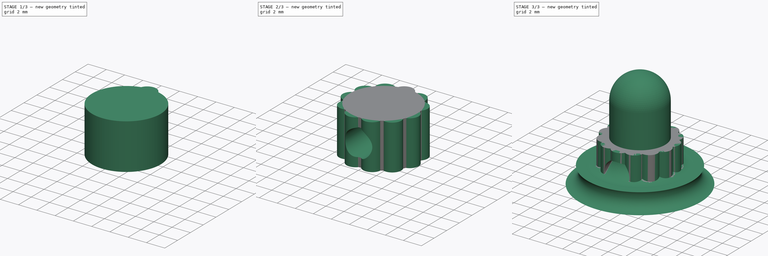
[diagram: build sequence overview — one tinted view per stage of 3, left to right]
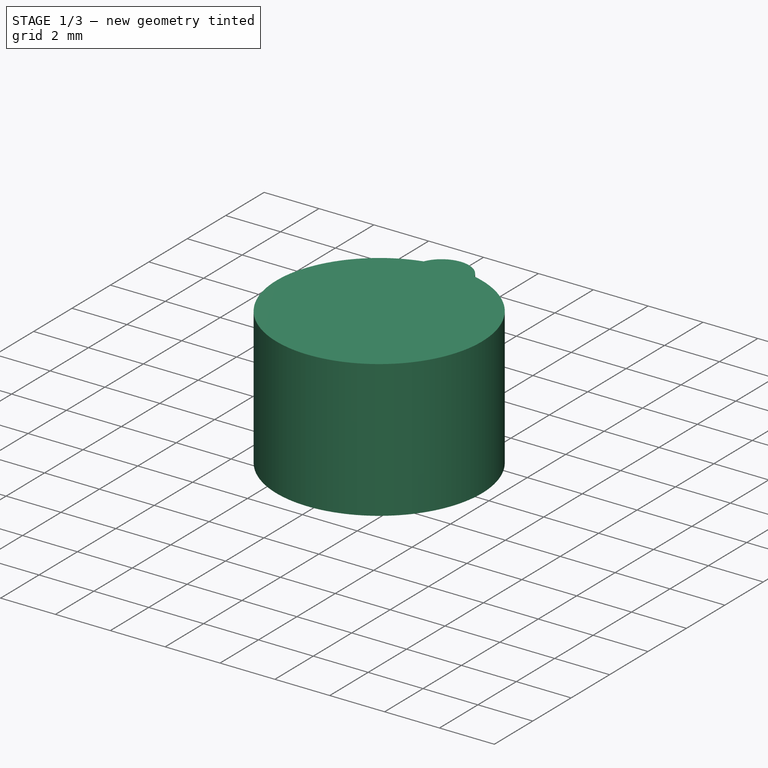
[diagram: stage 1 of 3 — iso view after this stage's code; geometry added in this stage tinted green]
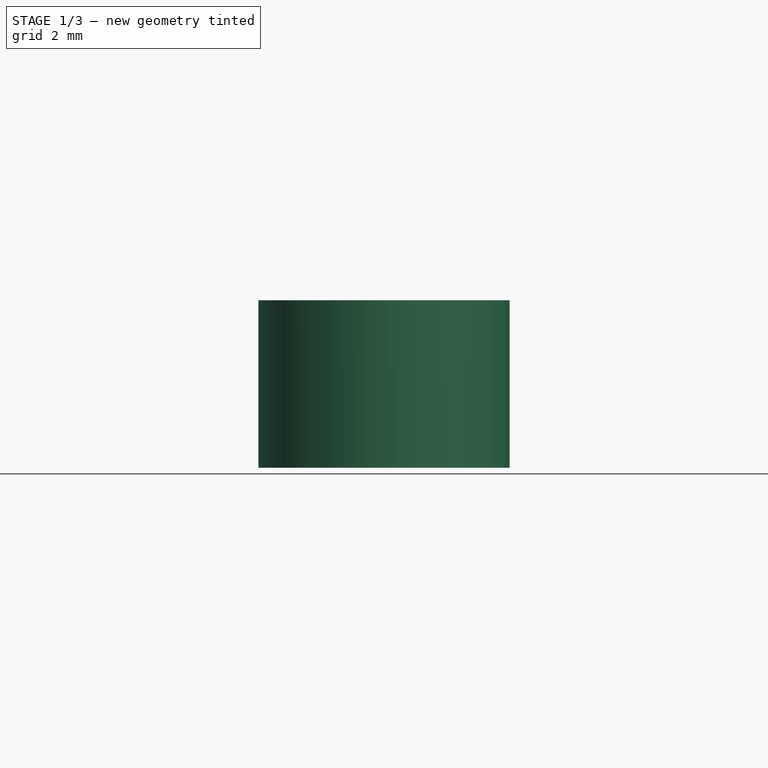
[diagram: stage 1 of 3 — front view after this stage's code; geometry added in this stage tinted green]
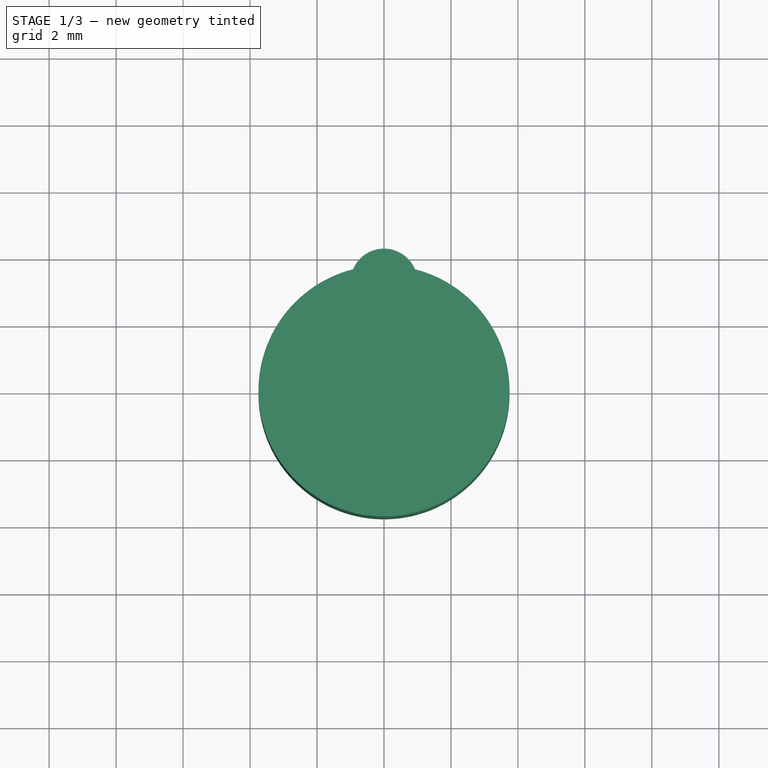
[diagram: stage 1 of 3 — top view after this stage's code; geometry added in this stage tinted green]
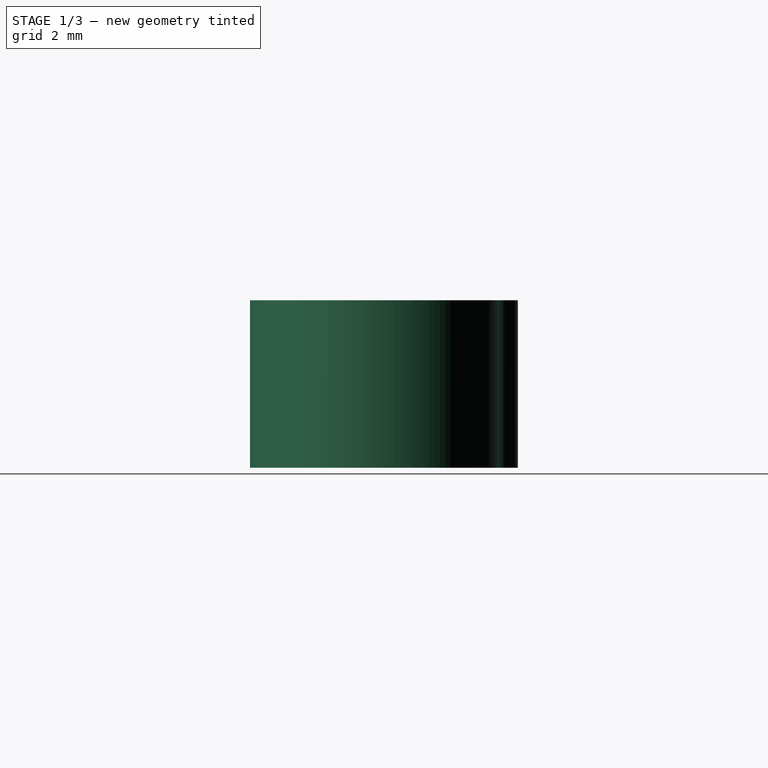
[diagram: stage 1 of 3 — right view after this stage's code; geometry added in this stage tinted green]
FCSTD DOCUMENT  (FreeCAD 0.20R29177 +426 (Git))
Label: fartbag_screw
License: All rights reserved
LicenseURL: http://en.wikipedia.org/wiki/All_rights_reserved
objects: Sketcher::SketchObject×5, PartDesign::Pad×2, PartDesign::PolarPattern×1, PartDesign::Pocket×1, PartDesign::Revolution×1, Part::Part2DObjectPython×1, Part::Helix×1, PartDesign::AdditivePipe×1, PartDesign::Body×1
note: 19 computed .brp shape members not serialized (recipe doc carries the construction recipe); baked Part::Feature solids carry a one-line shape summary decoded from their .brp

FEATURE [Sketcher::SketchObject] Sketch
  FullyConstrained = true
  MapMode = 5
  Support = -> [XY_Plane]
  sketch-geometry (1):
    g0: Circle CenterX=0 CenterY=0 CenterZ=0 NormalX=0 NormalY=0 NormalZ=1 AngleXU=0 Radius=3.75
  constraints (2):
    c: Coincident(g0,g-1)
    c: Diameter(g0) = 7.5
FEATURE [PartDesign::Pad] Pad
  Direction = (0,0,1)
  Length = 5
  Length2 = 10
  Profile = -> Sketch
  ReferenceAxis = -> Sketch [N_Axis]
  Type = 0
FEATURE [Sketcher::SketchObject] Sketch001
  ExternalGeometry = -> [Pad]
  FullyConstrained = true
  MapMode = 5
  Placement = pos=(0,0,5) rot=(0,0,1;0rad)
  Support = -> [Pad]
  sketch-geometry (5):
    g0: Circle CenterX=0 CenterY=3.25 CenterZ=0 NormalX=0 NormalY=0 NormalZ=1 AngleXU=0 Radius=1
    g1: GeomPoint X=0 Y=4.25 Z=0
    g2: GeomPoint X=0 Y=3.75 Z=0
    g3: ArcOfCircle CenterX=0 CenterY=3.25 CenterZ=0 NormalX=0 NormalY=0 NormalZ=1 AngleXU=0 Radius=1 StartAngle=0.394791 EndAngle=2.7468
    g4: ArcOfCircle CenterX=0 CenterY=0 CenterZ=0 NormalX=0 NormalY=0 NormalZ=1 AngleXU=0 Radius=3.75 StartAngle=1.32209 EndAngle=1.81951
  constraints (13):
    c: PointOnObject(g0,g-2)
    c: PointOnObject(g1,g0)
    c: PointOnObject(g2,g-3)
    c: PointOnObject(g2,g-2)
    c: PointOnObject(g1,g-2)
    c: DistanceY(g2,g1) = 0.5
    c: Diameter(g0) = 2
    c: Coincident(g3,g0)
    c: PointOnObject(g3,g0)
    c: PointOnObject(g3,g-3)
    c: Coincident(g4,g-3)
    c: Coincident(g4,g3)
    c: Coincident(g4,g3)
FEATURE [PartDesign::Pad] Pad001
  BaseFeature = -> Pad
  Direction = (0,0,1)
  Length = 2.5
  Length2 = 10
  Profile = -> Sketch001
  ReferenceAxis = -> Sketch001 [N_Axis]
  Reversed = true
  Type = 3
  UpToFace = -> Pad [Face2]
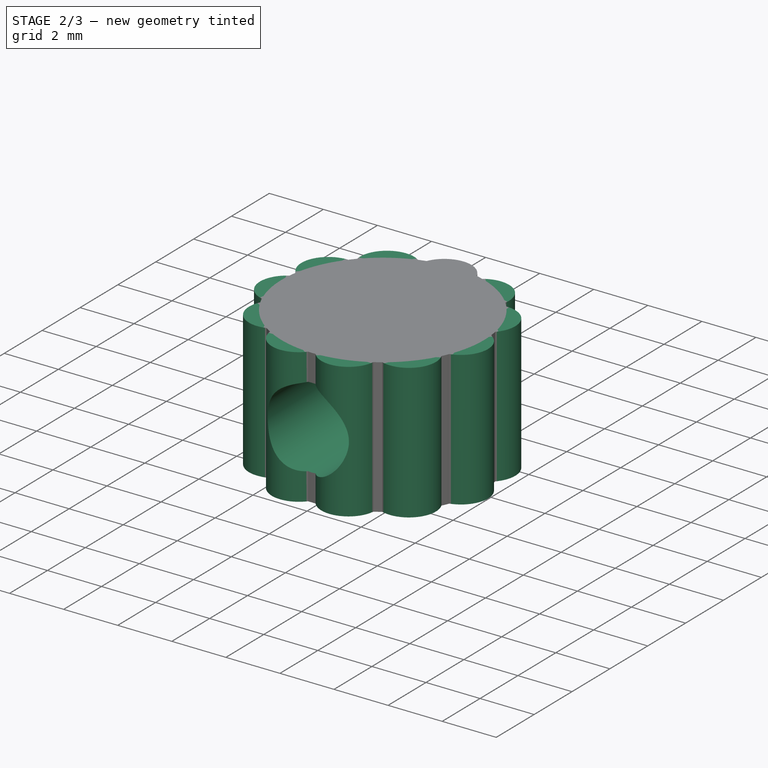
[diagram: stage 2 of 3 — iso view after this stage's code; geometry added in this stage tinted green]
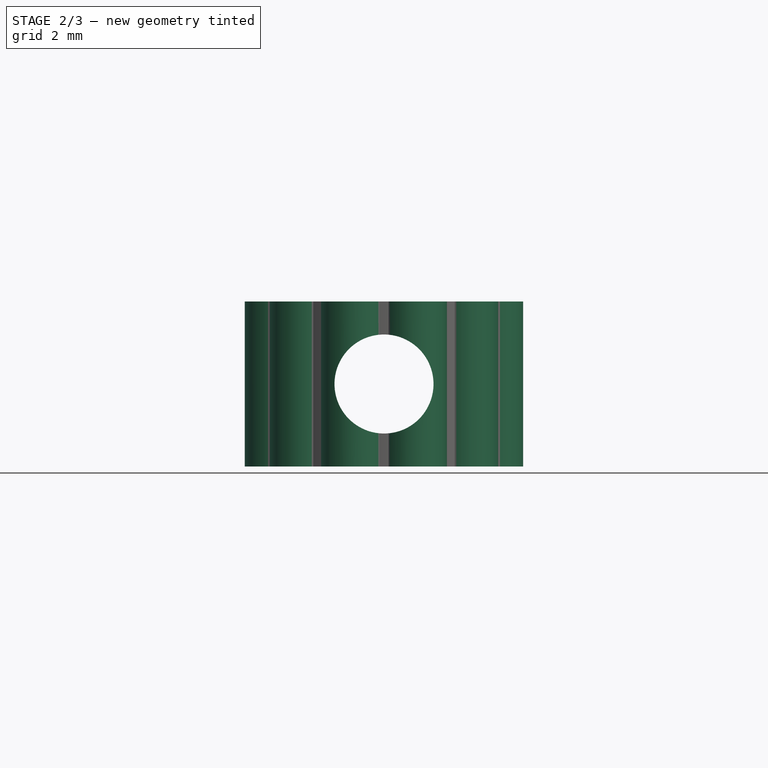
[diagram: stage 2 of 3 — front view after this stage's code; geometry added in this stage tinted green]
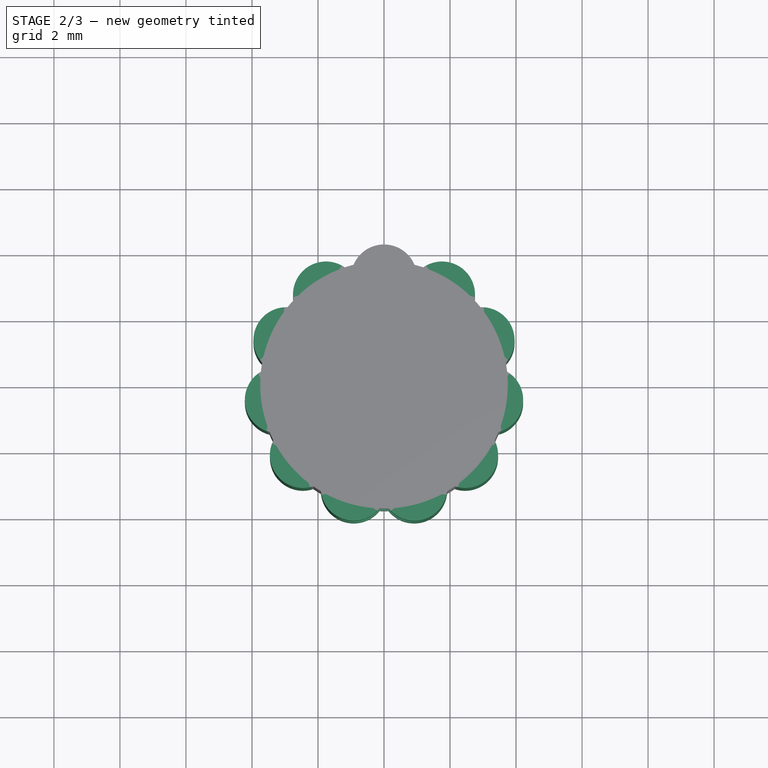
[diagram: stage 2 of 3 — top view after this stage's code; geometry added in this stage tinted green]
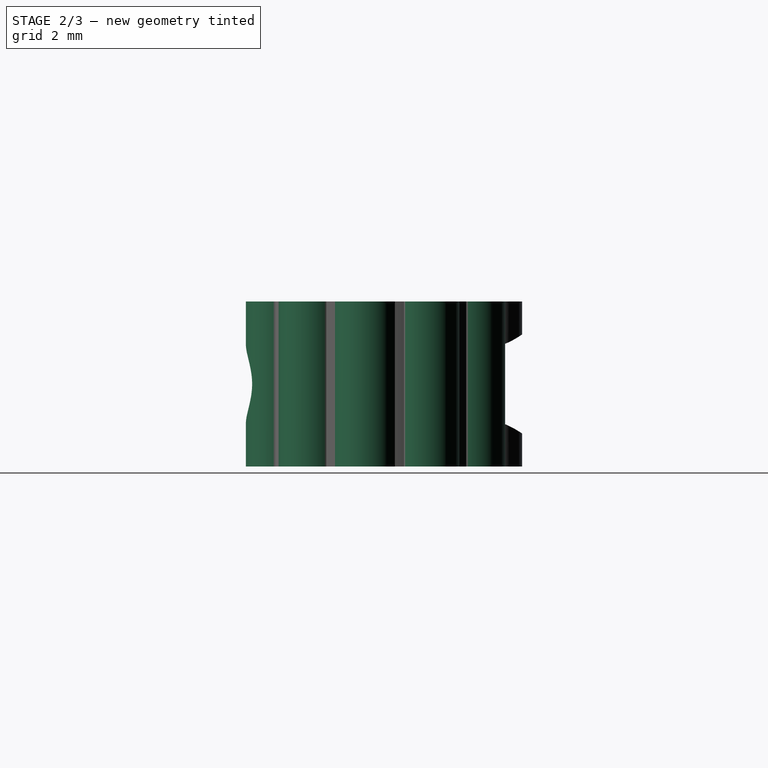
[diagram: stage 2 of 3 — right view after this stage's code; geometry added in this stage tinted green]
FEATURE [PartDesign::PolarPattern] PolarPattern
  Angle = 360
  Axis = -> Sketch001 [N_Axis]
  BaseFeature = -> Pad001
  Occurrences = 11
  Originals = -> [Pad001]
FEATURE [Sketcher::SketchObject] Sketch003
  FullyConstrained = true
  MapMode = 5
  Placement = pos=(0,0,5) rot=(0,0,1;0rad)
  Support = -> [PolarPattern]
  sketch-geometry (1):
    g0: Circle CenterX=0 CenterY=0 CenterZ=0 NormalX=0 NormalY=0 NormalZ=1 AngleXU=0 Radius=6
  constraints (2):
    c: Coincident(g0,g-1)
    c: Diameter(g0) = 12
FEATURE [Sketcher::SketchObject] Sketch004
  ExternalGeometry = -> [PolarPattern]
  FullyConstrained = true
  MapMode = 5
  Placement = pos=(0,0,0) rot=(1,0,0;1.5708rad)
  Support = -> [XZ_Plane]
  sketch-geometry (15):
    g0: LineSegment StartX=0 StartY=7.5 StartZ=0 EndX=7.25 EndY=7.5 EndZ=0
    g1: LineSegment StartX=7.25 StartY=5 StartZ=0 EndX=0 EndY=5 EndZ=0
    g2: LineSegment StartX=0 StartY=5 StartZ=0 EndX=0 EndY=7.5 EndZ=0
    g3: LineSegment StartX=7.25 StartY=7.5 StartZ=0 EndX=7.25 EndY=5 EndZ=0
    g4: LineSegment StartX=0 StartY=6.25 StartZ=0 EndX=6 EndY=6.25 EndZ=0
    g5: LineSegment StartX=0 StartY=5 StartZ=0 EndX=7.25 EndY=5 EndZ=0
    g6: ArcOfCircle CenterX=7.25 CenterY=6.25 CenterZ=0 NormalX=0 NormalY=0 NormalZ=1 AngleXU=0 Radius=1.25 StartAngle=2.49809 EndAngle=4.71239
    g7: LineSegment StartX=0 StartY=7 StartZ=0 EndX=6.25 EndY=7 EndZ=0
    g8: LineSegment StartX=0 StartY=7 StartZ=0 EndX=0 EndY=5 EndZ=0
    g9: LineSegment StartX=6.25 StartY=7 StartZ=0 EndX=5.25 EndY=7 EndZ=0
    g10: LineSegment StartX=0 StartY=9 StartZ=0 EndX=0 EndY=7 EndZ=0
    g11: ArcOfCircle CenterX=5.01389 CenterY=9 CenterZ=0 NormalX=0 NormalY=0 NormalZ=1 AngleXU=0 Radius=2.01389 StartAngle=3.14159 EndAngle=4.8299
    g12: LineSegment StartX=3 StartY=9 StartZ=0 EndX=3 EndY=14 EndZ=0
    g13: ArcOfCircle CenterX=0 CenterY=14 CenterZ=0 NormalX=0 NormalY=0 NormalZ=1 AngleXU=0 Radius=3 StartAngle=2e-16 EndAngle=1.5708
    g14: LineSegment StartX=0 StartY=17 StartZ=0 EndX=0 EndY=9 EndZ=0
  constraints (44):
    c: Coincident(g1,g2)
    c: Coincident(g2,g0)
    c: Horizontal(g0)
    c: Horizontal(g1)
    c: Vertical(g2)
    c: PointOnObject(g1,g-3)
    c: DistanceY(g1,g0) = 2.5
    c: Vertical(g3)
    c: Coincident(g1,g3)
    c: Horizontal(g4)
    c: Symmetric(g0,g1,g4)
    c: DistanceX(g4,g4) = 6
    c: Coincident(g5,g1)
    c: Coincident(g3,g0)
    c: DistanceX(g0,g0) = 7.25
    c: PointOnObject(g0,g-2)
    c: PointOnObject(g7,g2)
    c: Coincident(g7,g6)
    c: Horizontal(g7)
    c: DistanceY(g5,g7) = 2
    c: Radius(g6) = 1.25
    c: PointOnObject(g4,g6)
    c: Tangent(g6,g5) = -1.5708
    c: Coincident(g1,g5)
    c: Coincident(g8,g7)
    c: Coincident(g8,g5)
    c: Coincident(g9,g6)
    c: PointOnObject(g9,g7)
    c: DistanceX(g9,g9) = 1
    c: PointOnObject(g10,g-2)
    c: DistanceX(g10,g11) = 3
    c: Coincident(g10,g8)
    c: DistanceY(g10,g10) = 2
    c: Coincident(g11,g9)
    c: Vertical(g12)
    c: Coincident(g13,g12)
    c: PointOnObject(g13,g-2)
    c: Coincident(g14,g13)
    c: Coincident(g14,g10)
    c: PointOnObject(g13,g14)
    c: Horizontal(g13,g12)
    c: DistanceY(g10,g13) = 5
    c: Horizontal(g11,g10)
    c: Tangent(g12,g11) = 1.5708
FEATURE [Sketcher::SketchObject] Sketch006
  FullyConstrained = true
  MapMode = 5
  Placement = pos=(0,0,0) rot=(1,0,0;1.5708rad)
  Support = -> [XZ_Plane]
  sketch-geometry (2):
    g0: Circle CenterX=0 CenterY=2.5 CenterZ=0 NormalX=0 NormalY=0 NormalZ=1 AngleXU=0 Radius=1.5
    g1: GeomPoint X=0 Y=5 Z=0
  constraints (4):
    c: PointOnObject(g0,g-2)
    c: Symmetric(g1,g-1,g0)
    c: Diameter(g0) = 3
    c: DistanceY(g-1,g1) = 5
FEATURE [PartDesign::Pocket] Pocket
  BaseFeature = -> PolarPattern
  Direction = (0,1,2e-16)
  Length = 0
  Length2 = 5
  Midplane = true
  Profile = -> Sketch006
  ReferenceAxis = -> Sketch006 [N_Axis]
  Type = 1
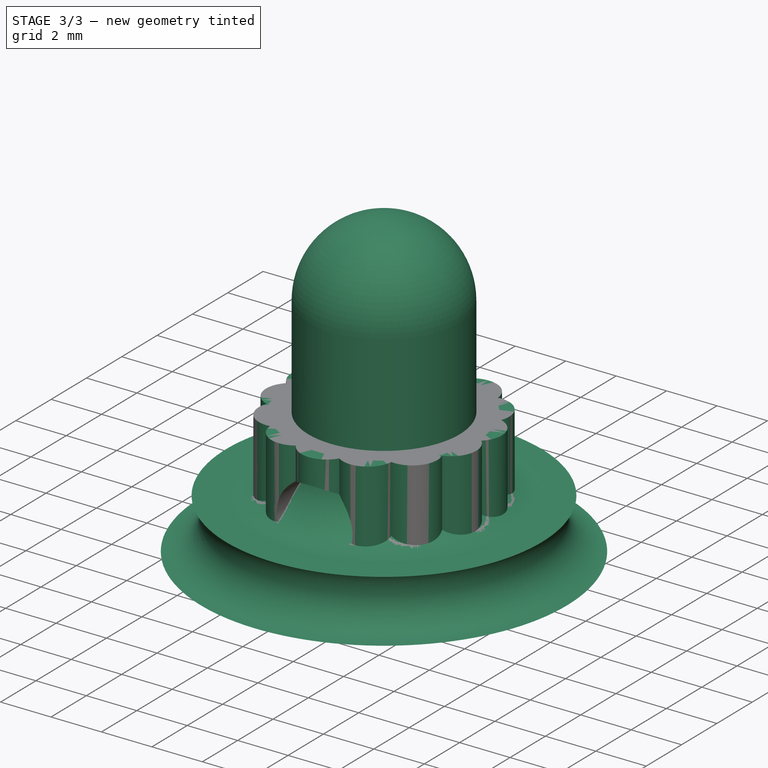
[diagram: stage 3 of 3 — iso view after this stage's code; geometry added in this stage tinted green]
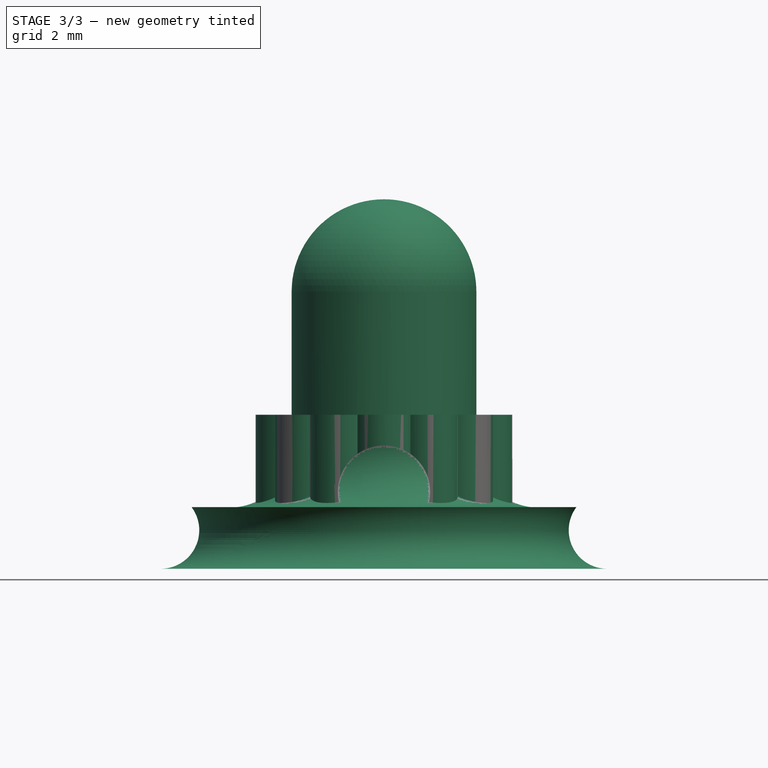
[diagram: stage 3 of 3 — front view after this stage's code; geometry added in this stage tinted green]
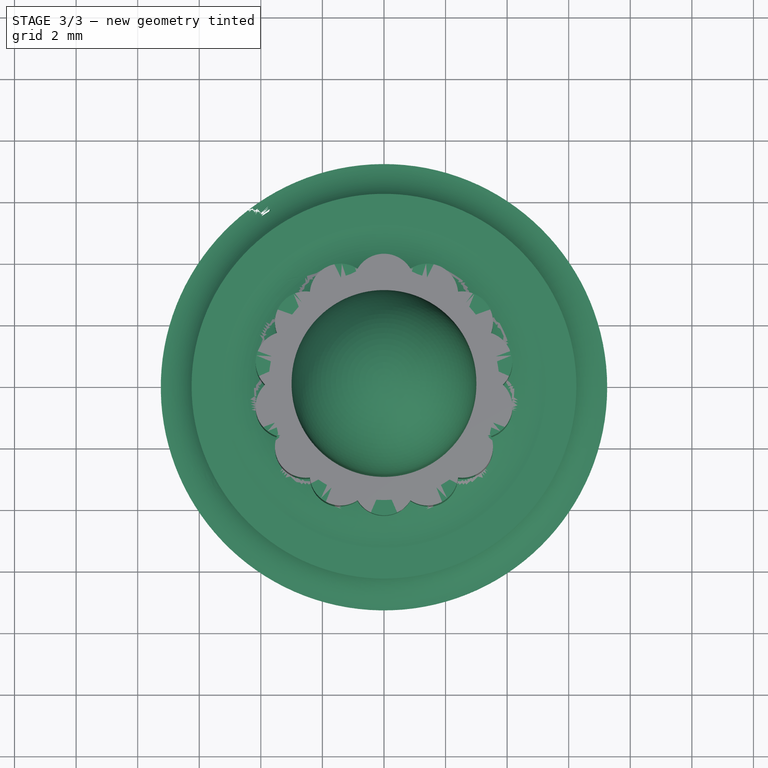
[diagram: stage 3 of 3 — top view after this stage's code; geometry added in this stage tinted green]
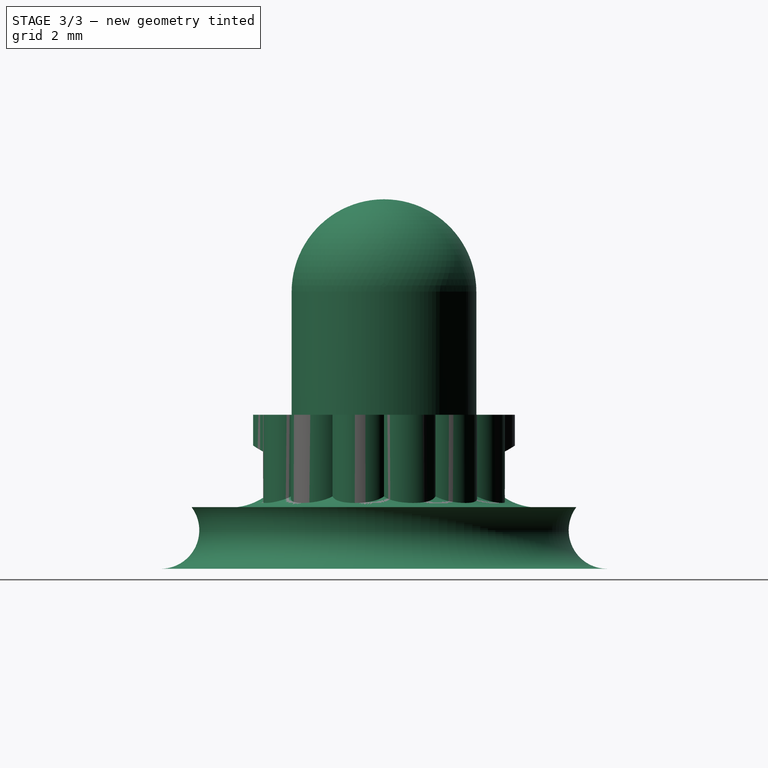
[diagram: stage 3 of 3 — right view after this stage's code; geometry added in this stage tinted green]
FEATURE [PartDesign::Revolution] Revolution
  Angle = 360
  Axis = (0,-2e-16,1)
  Base = (0,0,0)
  BaseFeature = -> Pocket
  Profile = -> Sketch004
  ReferenceAxis = -> Sketch004 [V_Axis]
  Reversed = true
FEATURE [Part::Part2DObjectPython] VThreadProfile  # Draft 2D object (typed FeaturePython)
  Area = 57.1541
  Closed = true
  Continuity = C2
  Height = 5
  Helix = Helix
  Instructions = Expand this with the ... button to view instructions | Sweep this object along a helix of the same pitch to produce your thread. | It is recommended to make the helix in the ThreadProfile workbench. | If there is an active Body the ThreadProfile object will be put into it.,If not it can be dragged and dropped into the body later. | If there is an active Body when the helix is made there will be made a ShapeBinder for it | For internal threads you will need to cut the Sweep object out of a cylinder, or if using Part Design sweep it as a Subtractive Pipe. | Always use Frenet mode | I have provided some presets, but it is possible there could be some errors.  Double check for mission critical applications. | Also, the tolerances might be different from what you wish to have.  I believe the internal minor diameters are all minimum and the external are all maximum.
  InternalOrExternal = 1
  MakeFace = true
  MapMode = 11
  MinorDiameter = 6
  Parameterization = 1
  Pitch = 5
  Placement = pos=(-3.16852,0.723193,5) rot=(0.987733,0.15615,0;3.14159rad)
  Points = (66) [(2.97444,0.286806,0),(2.83081,0.551039,0),(2.69316,0.798925,0),(2.55189,1.03262,0),(2.40325,1.25309,0),(2.24552,1.46082,0),(2.07788,1.656,0),+59 more]
  Presets = 0
  Quality = 11
  Support = -> [Revolution]
  ThreadCount = 1
  Variants = 0
  Version = 1.85
  external2S_data = [-0.00461051,-0.00886426,-0.0128148,-0.0165028,-0.0199596,-0.0232105,-0.0262759,-0.0291725,-0.0319145,-0.0345137,-0.0369805,-0.0393235,-0.0415505,-0.0436681,-0.0456823,-0.0475981,-0.0494204,-0.0511532,-0.0528003,-0.0543649,-0.0558502,+698 more]
  external3S_data = [-0.00677828,-0.0128149,-0.0182584,-0.0232106,-0.0277444,-0.0319145,-0.0357632,-0.0393236,-0.0426227,-0.0456823,-0.0485208,-0.0511533,-0.0535928,-0.0558503,-0.0579353,-0.059856,-0.0616195,-0.0632319,-0.0646984,-0.0660239,-0.0672123,+698 more]
  external45_data = [-0.00137363,-0.00271738,-0.00403219,-0.00531893,-0.00657844,-0.00781148,-0.00901878,-0.010201,-0.0113589,-0.012493,-0.0136039,-0.0146921,-0.0157583,-0.0168028,-0.0178261,-0.0188288,-0.0198112,-0.0207738,-0.0217169,-0.0226409,-0.0235462,+698 more]
  external_data = [-0.00235387,-0.00461052,-0.00677828,-0.00886428,-0.0108747,-0.0128149,-0.0146895,-0.0165028,-0.0182584,-0.0199597,-0.0216095,-0.0232106,-0.0247653,-0.0262759,-0.0277444,-0.0291725,-0.0305621,-0.0319145,-0.0332313,-0.0345138,-0.0357632,+698 more]
  internal2S_data = [0,0,0,0,0,0,0,0,0,0,0,0,0,0,0,0,0,0,0,0,0,0,0,0,0,0,0,0,0,0,0,0,0,0,0,0,0,0,0,0,0,0,0,0,0,0,0,0,0,0,0,0,0,0,0,0,0,0,0,0,0,0,0,0,0,0,0,0,0,0,0,0,0,0,0,0,0,0,0,0,0,0,0,0,0,0,0,0,0,0,0.00481128,0.00962256,0.0144338,0.0192451,0.0240564,+624 more]
  internal3S_data = [0,0,0,0,0,0,0,0,0,0,0,0,0,0,0,0,0,0,0,0,0,0,0,0,0,0,0,0,0,0,0,0,0,0,0,0,0,0,0,0,0,0,0,0,0,0,0,0,0,0,0,0,0,0,0,0,0,0,0,0,0.00721688,0.0144338,0.0216506,0.0288675,0.0360844,0.0433013,0.0505181,0.057735,0.0649519,0.0721688,0.0793857,0.0866025,+647 more]
  internal45_data = [0,0,0,0,0,0,0,0,0,0,0,0,0,0,0,0,0,0,0,0,0,0,0,0,0,0,0,0,0,0,0,0,0,0,0,0,0,0,0,0,0,0,0,0,0,0,0,0,0,0,0,0,0,0,0,0,0,0,0,0,0,0,0,0,0,0,0,0,0,0,0,0,0,0,0,0,0,0,0,0,0,0,0,0,0,0,0,0,0,0,0,0,0,0,0,0,0,0,0,0,0,0,0,0,0,0,0,0,0,0,0,0,0,0,0,0,0,0,0,0,+599 more]
  internal_data = [0,0,0,0,0,0,0,0,0,0,0,0,0,0,0,0,0,0,0,0,0,0,0,0,0,0,0,0,0,0,0,0,0,0,0,0,0,0,0,0,0,0,0,0,0,0,0,0,0,0,0,0,0,0,0,0,0,0,0,0,0,0,0,0,0,0,0,0,0,0,0,0,0,0,0,0,0,0,0,0,0,0,0,0,0,0,0,0,0,0,0,0,0,0,0,0,0,0,0,0,0,0,0,0,0,0,0,0,0,0,0,0,0,0,0,0,0,0,0,0,+599 more]
  preset_names = <blob: 3959 chars omitted>
  presets_data = [0,0,0,2.20878,24.1173,24.6888,0.25,0.693,0.729,0.25,0.793,0.829,0.25,0.893,0.929,0.3,1.032,1.075,0.35,1.171,1.221,0.35,1.371,1.421,0.4,1.509,1.567,0.45,1.648,1.713,0.45,1.948,2.013,0.5,2.387,2.459,0.6,2.764,2.85,0.7,3.141,3.242,0.75,3.58,+712 more]
FEATURE [Part::Helix] Helix
  Angle = 0
  AttacherType = Attacher::AttachEngine3D
  Height = 5
  LocalCoord = 0
  MapMode = 11
  Pitch = 5
  Placement = pos=(-3.16852,0.723193,5) rot=(0.987733,0.15615,0;3.14159rad)
  Radius = 1
  SegmentLength = 0
  Style = 0
  Support = -> [Revolution]
  expr: AttachmentOffset = VThreadProfile.AttachmentOffset
  expr: Height = VThreadProfile.ThreadCount * VThreadProfile.Pitch
  expr: MapMode = VThreadProfile.MapMode
  expr: MapPathParameter = VThreadProfile.MapPathParameter
  expr: MapReversed = VThreadProfile.MapReversed
  expr: Pitch = VThreadProfile.Pitch
  expr: Support = VThreadProfile.Support
FEATURE [PartDesign::AdditivePipe] AdditivePipe
  AuxilleryCurvelinear = true
  AuxillerySpineTangent = false
  BaseFeature = -> Revolution
  Binormal = (0,0,0)
  Mode = 2
  Profile = -> VThreadProfile
  Spine = -> Helix
  SpineTangent = false
  Transformation = 0
  Transition = 0
FEATURE [PartDesign::Body] Body
  Group = -> [Sketch,Pad,Sketch001,Pad001,PolarPattern,Pocket,Sketch003,Revolution,Sketch004,Sketch006,VThreadProfile,Helix,AdditivePipe]
  Origin = -> Origin
  Tip = -> Revolution
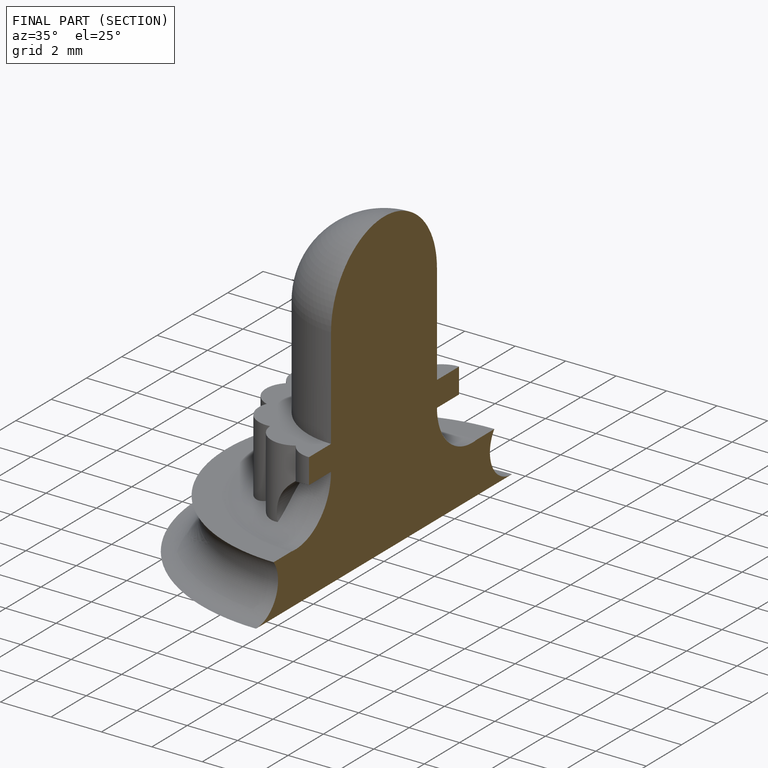
[diagram: finished part — half-section view (interior)]
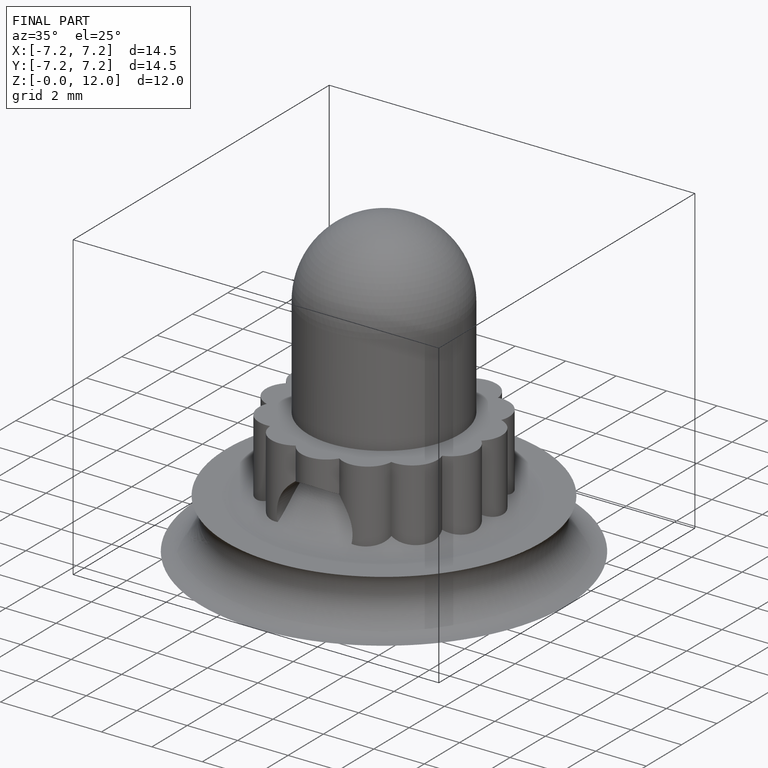
[diagram: finished part — iso view with bounding-box wireframe]
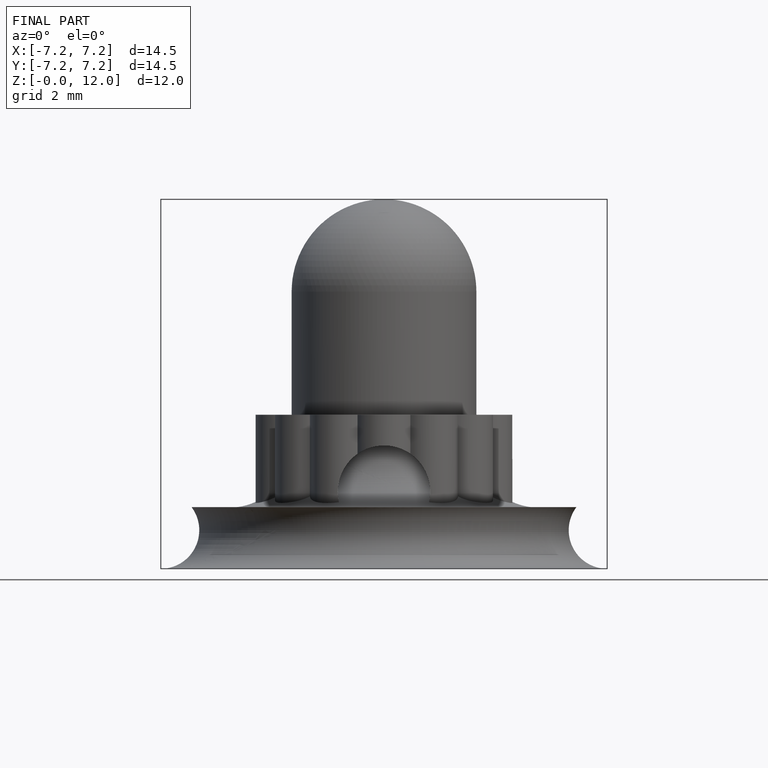
[diagram: finished part — front view with bounding-box wireframe]
